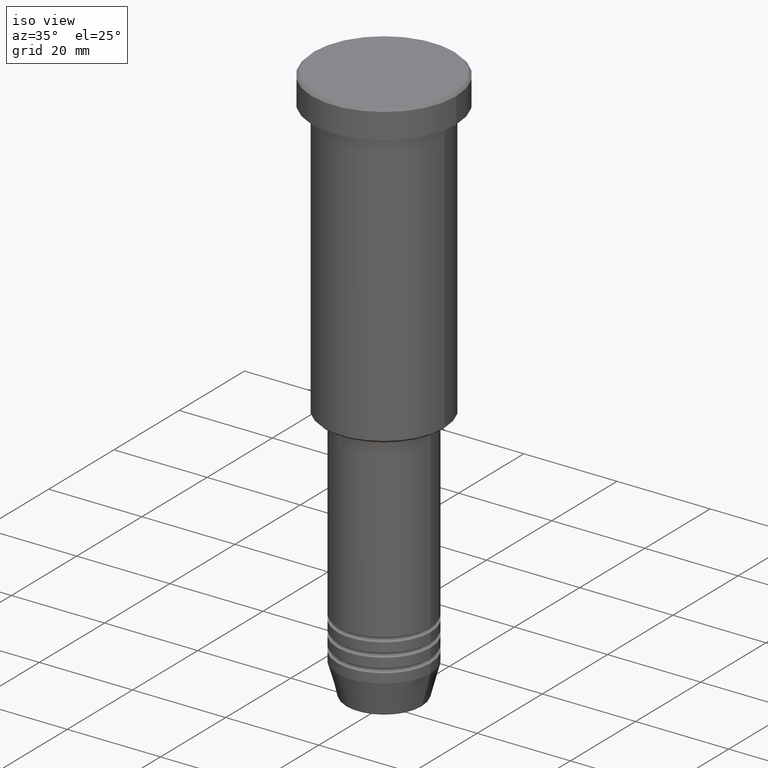
[diagram: clean part render]
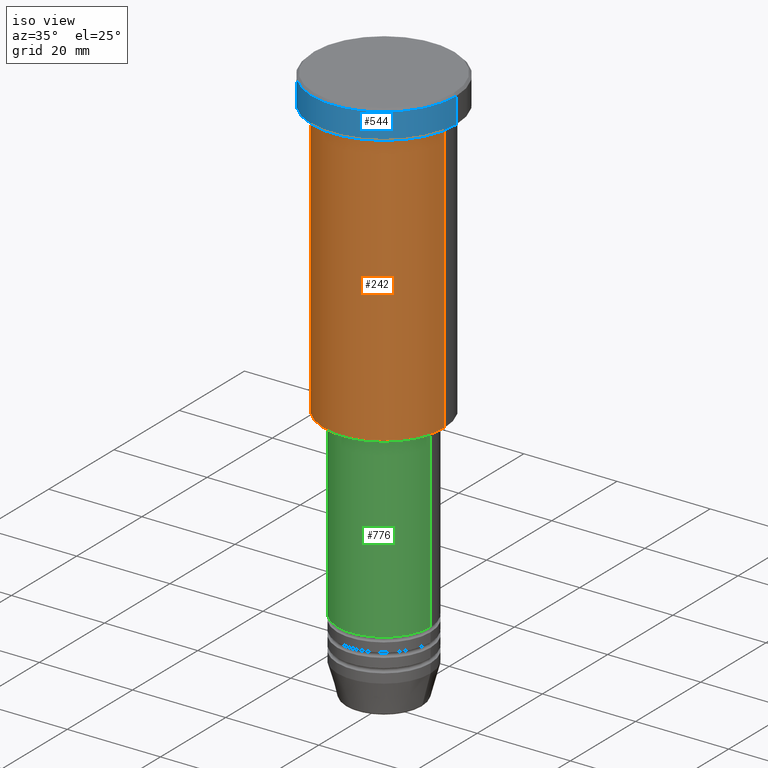
[diagram: same view with three faces highlighted in distinct colors, each labeled with its STEP entity id]
A machine part, iso view with three faces highlighted in distinct colors.
Their STEP definitions:

[orange] entity #242 — the highlighted cylindrical surface (partial cylindrical patch) has radius 13 mm, axis along (-0, -0, 1).
#29 = VECTOR ( 'NONE', #357, 1000.000000000000000 ) ;
#55 = CARTESIAN_POINT ( 'NONE',  ( 0.000000000000000000, 0.000000000000000000, -6.999999999999995559 ) ) ;
#81 = VECTOR ( 'NONE', #976, 1000.000000000000000 ) ;
#99 = FACE_OUTER_BOUND ( 'NONE', #1121, .T. ) ;
#135 = EDGE_CURVE ( 'NONE', #857, #888, #1169, .T. ) ;
#168 = DIRECTION ( 'NONE',  ( -0.000000000000000000, -0.000000000000000000, 1.000000000000000000 ) ) ;
#174 = CARTESIAN_POINT ( 'NONE',  ( 0.000000000000000000, 0.000000000000000000, 0.000000000000000000 ) ) ;
#214 = VERTEX_POINT ( 'NONE', #363 ) ;
#242 = ADVANCED_FACE ( 'NONE', ( #99 ), #1001, .T. ) ;
#253 = VERTEX_POINT ( 'NONE', #1111 ) ;
#281 = DIRECTION ( 'NONE',  ( -1.000000000000000000, 0.000000000000000000, 0.000000000000000000 ) ) ;
#330 = DIRECTION ( 'NONE',  ( -0.000000000000000000, -0.000000000000000000, 1.000000000000000000 ) ) ;
#357 = DIRECTION ( 'NONE',  ( -0.000000000000000000, -0.000000000000000000, 1.000000000000000000 ) ) ;
#363 = CARTESIAN_POINT ( 'NONE',  ( 13.00000000000000000, 0.000000000000000000, -6.999999999999995559 ) ) ;
#435 = CIRCLE ( 'NONE', #1095, 13.00000000000000000 ) ;
#451 = CARTESIAN_POINT ( 'NONE',  ( 13.00000000000000000, 0.000000000000000000, 0.000000000000000000 ) ) ;
#502 = ORIENTED_EDGE ( 'NONE', *, *, #503, .F. ) ;
#503 = EDGE_CURVE ( 'NONE', #888, #214, #1057, .T. ) ;
#521 = DIRECTION ( 'NONE',  ( 1.000000000000000000, 0.000000000000000000, 0.000000000000000000 ) ) ;
#555 = AXIS2_PLACEMENT_3D ( 'NONE', #55, #330, #521 ) ;
#557 = DIRECTION ( 'NONE',  ( -0.000000000000000000, -0.000000000000000000, 1.000000000000000000 ) ) ;
#617 = ORIENTED_EDGE ( 'NONE', *, *, #1144, .T. ) ;
#736 = CARTESIAN_POINT ( 'NONE',  ( -13.00000000000000000, 1.592040838891559095E-15, -6.999999999999995559 ) ) ;
#737 = LINE ( 'NONE', #451, #29 ) ;
#762 = ORIENTED_EDGE ( 'NONE', *, *, #135, .F. ) ;
#857 = VERTEX_POINT ( 'NONE', #1094 ) ;
#859 = EDGE_CURVE ( 'NONE', #857, #253, #435, .T. ) ;
#888 = VERTEX_POINT ( 'NONE', #736 ) ;
#914 = DIRECTION ( 'NONE',  ( 1.000000000000000000, 0.000000000000000000, 0.000000000000000000 ) ) ;
#951 = ORIENTED_EDGE ( 'NONE', *, *, #859, .T. ) ;
#976 = DIRECTION ( 'NONE',  ( -0.000000000000000000, -0.000000000000000000, 1.000000000000000000 ) ) ;
#990 = CARTESIAN_POINT ( 'NONE',  ( -13.00000000000000000, 1.592040838891559095E-15, 0.000000000000000000 ) ) ;
#1001 = CYLINDRICAL_SURFACE ( 'NONE', #1131, 13.00000000000000000 ) ;
#1016 = CARTESIAN_POINT ( 'NONE',  ( 0.000000000000000000, 0.000000000000000000, -65.49999999999998579 ) ) ;
#1057 = CIRCLE ( 'NONE', #555, 13.00000000000000000 ) ;
#1094 = CARTESIAN_POINT ( 'NONE',  ( -13.00000000000000000, 1.592040838891559095E-15, -65.49999999999998579 ) ) ;
#1095 = AXIS2_PLACEMENT_3D ( 'NONE', #1016, #168, #281 ) ;
#1111 = CARTESIAN_POINT ( 'NONE',  ( 13.00000000000000000, 0.000000000000000000, -65.49999999999998579 ) ) ;
#1121 = EDGE_LOOP ( 'NONE', ( #762, #951, #617, #502 ) ) ;
#1131 = AXIS2_PLACEMENT_3D ( 'NONE', #174, #557, #914 ) ;
#1144 = EDGE_CURVE ( 'NONE', #253, #214, #737, .T. ) ;
#1169 = LINE ( 'NONE', #990, #81 ) ;

[blue] entity #544 — the highlighted cylindrical surface (partial cylindrical patch) has radius 15.5 mm, axis along (-0, -0, 1).
#7 = DIRECTION ( 'NONE',  ( -0.000000000000000000, -0.000000000000000000, 1.000000000000000000 ) ) ;
#32 = VERTEX_POINT ( 'NONE', #608 ) ;
#152 = CYLINDRICAL_SURFACE ( 'NONE', #813, 15.50000000000000000 ) ;
#175 = VECTOR ( 'NONE', #621, 1000.000000000000000 ) ;
#238 = CARTESIAN_POINT ( 'NONE',  ( 15.50000000000000000, 0.000000000000000000, 0.000000000000000000 ) ) ;
#250 = CARTESIAN_POINT ( 'NONE',  ( 0.000000000000000000, 0.000000000000000000, 0.000000000000000000 ) ) ;
#276 = CARTESIAN_POINT ( 'NONE',  ( 0.000000000000000000, 0.000000000000000000, -5.999999999999995559 ) ) ;
#299 = ORIENTED_EDGE ( 'NONE', *, *, #359, .T. ) ;
#359 = EDGE_CURVE ( 'NONE', #384, #32, #1003, .T. ) ;
#373 = DIRECTION ( 'NONE',  ( 1.000000000000000000, 0.000000000000000000, 0.000000000000000000 ) ) ;
#384 = VERTEX_POINT ( 'NONE', #778 ) ;
#392 = VECTOR ( 'NONE', #994, 1000.000000000000000 ) ;
#411 = AXIS2_PLACEMENT_3D ( 'NONE', #947, #490, #856 ) ;
#425 = CARTESIAN_POINT ( 'NONE',  ( 15.50000000000000000, 0.000000000000000000, -5.999999999999995559 ) ) ;
#426 = CARTESIAN_POINT ( 'NONE',  ( -15.50000000000000000, 1.898202538678397557E-15, 0.000000000000000000 ) ) ;
#489 = VERTEX_POINT ( 'NONE', #699 ) ;
#490 = DIRECTION ( 'NONE',  ( 0.000000000000000000, 0.000000000000000000, -1.000000000000000000 ) ) ;
#508 = EDGE_CURVE ( 'NONE', #489, #32, #1068, .T. ) ;
#544 = ADVANCED_FACE ( 'NONE', ( #787 ), #152, .T. ) ;
#603 = EDGE_CURVE ( 'NONE', #960, #384, #1164, .T. ) ;
#608 = CARTESIAN_POINT ( 'NONE',  ( -15.50000000000000000, 1.898202538678397557E-15, -0.4999999999999848455 ) ) ;
#621 = DIRECTION ( 'NONE',  ( -0.000000000000000000, -0.000000000000000000, 1.000000000000000000 ) ) ;
#638 = ORIENTED_EDGE ( 'NONE', *, *, #508, .F. ) ;
#688 = ORIENTED_EDGE ( 'NONE', *, *, #849, .T. ) ;
#699 = CARTESIAN_POINT ( 'NONE',  ( -15.50000000000000000, 1.898202538678397557E-15, -5.999999999999995559 ) ) ;
#778 = CARTESIAN_POINT ( 'NONE',  ( 15.50000000000000000, 0.000000000000000000, -0.4999999999999848455 ) ) ;
#787 = FACE_OUTER_BOUND ( 'NONE', #883, .T. ) ;
#813 = AXIS2_PLACEMENT_3D ( 'NONE', #250, #1055, #885 ) ;
#847 = ORIENTED_EDGE ( 'NONE', *, *, #603, .T. ) ;
#849 = EDGE_CURVE ( 'NONE', #489, #960, #948, .T. ) ;
#856 = DIRECTION ( 'NONE',  ( 1.000000000000000000, 0.000000000000000000, 0.000000000000000000 ) ) ;
#883 = EDGE_LOOP ( 'NONE', ( #638, #688, #847, #299 ) ) ;
#885 = DIRECTION ( 'NONE',  ( 1.000000000000000000, 0.000000000000000000, 0.000000000000000000 ) ) ;
#947 = CARTESIAN_POINT ( 'NONE',  ( 0.000000000000000000, 0.000000000000000000, -0.4999999999999848455 ) ) ;
#948 = CIRCLE ( 'NONE', #1116, 15.50000000000000000 ) ;
#960 = VERTEX_POINT ( 'NONE', #425 ) ;
#994 = DIRECTION ( 'NONE',  ( -0.000000000000000000, -0.000000000000000000, 1.000000000000000000 ) ) ;
#1003 = CIRCLE ( 'NONE', #411, 15.50000000000000000 ) ;
#1055 = DIRECTION ( 'NONE',  ( -0.000000000000000000, -0.000000000000000000, 1.000000000000000000 ) ) ;
#1068 = LINE ( 'NONE', #426, #175 ) ;
#1116 = AXIS2_PLACEMENT_3D ( 'NONE', #276, #7, #373 ) ;
#1164 = LINE ( 'NONE', #238, #392 ) ;

[green] entity #776 — the highlighted cylindrical surface (partial cylindrical patch) has radius 10 mm, axis along (-0, -0, 1).
#12 = LINE ( 'NONE', #573, #910 ) ;
#16 = CARTESIAN_POINT ( 'NONE',  ( 10.00000000000000000, 0.000000000000000000, -104.9999999999999858 ) ) ;
#19 = CARTESIAN_POINT ( 'NONE',  ( 0.000000000000000000, 0.000000000000000000, 0.000000000000000000 ) ) ;
#62 = EDGE_CURVE ( 'NONE', #891, #204, #646, .T. ) ;
#70 = DIRECTION ( 'NONE',  ( -0.000000000000000000, -0.000000000000000000, 1.000000000000000000 ) ) ;
#106 = DIRECTION ( 'NONE',  ( -0.000000000000000000, -0.000000000000000000, 1.000000000000000000 ) ) ;
#112 = EDGE_LOOP ( 'NONE', ( #160, #492, #497, #210 ) ) ;
#160 = ORIENTED_EDGE ( 'NONE', *, *, #297, .F. ) ;
#204 = VERTEX_POINT ( 'NONE', #1027 ) ;
#210 = ORIENTED_EDGE ( 'NONE', *, *, #62, .F. ) ;
#224 = VERTEX_POINT ( 'NONE', #747 ) ;
#226 = EDGE_CURVE ( 'NONE', #224, #228, #756, .T. ) ;
#228 = VERTEX_POINT ( 'NONE', #16 ) ;
#245 = CARTESIAN_POINT ( 'NONE',  ( 0.000000000000000000, 0.000000000000000000, -67.00000000000000000 ) ) ;
#284 = DIRECTION ( 'NONE',  ( -0.000000000000000000, -0.000000000000000000, 1.000000000000000000 ) ) ;
#297 = EDGE_CURVE ( 'NONE', #224, #891, #12, .T. ) ;
#386 = DIRECTION ( 'NONE',  ( -0.000000000000000000, -0.000000000000000000, 1.000000000000000000 ) ) ;
#413 = VECTOR ( 'NONE', #468, 1000.000000000000000 ) ;
#468 = DIRECTION ( 'NONE',  ( -0.000000000000000000, -0.000000000000000000, 1.000000000000000000 ) ) ;
#492 = ORIENTED_EDGE ( 'NONE', *, *, #226, .T. ) ;
#497 = ORIENTED_EDGE ( 'NONE', *, *, #838, .T. ) ;
#551 = LINE ( 'NONE', #806, #413 ) ;
#573 = CARTESIAN_POINT ( 'NONE',  ( -10.00000000000000000, 1.224646799147353256E-15, 0.000000000000000000 ) ) ;
#626 = DIRECTION ( 'NONE',  ( 1.000000000000000000, 0.000000000000000000, 0.000000000000000000 ) ) ;
#646 = CIRCLE ( 'NONE', #1037, 10.00000000000000000 ) ;
#660 = DIRECTION ( 'NONE',  ( 1.000000000000000000, 0.000000000000000000, 0.000000000000000000 ) ) ;
#747 = CARTESIAN_POINT ( 'NONE',  ( -10.00000000000000000, 1.224646799147353256E-15, -104.9999999999999858 ) ) ;
#753 = FACE_OUTER_BOUND ( 'NONE', #112, .T. ) ;
#756 = CIRCLE ( 'NONE', #1023, 10.00000000000000000 ) ;
#776 = ADVANCED_FACE ( 'NONE', ( #753 ), #1113, .T. ) ;
#806 = CARTESIAN_POINT ( 'NONE',  ( 10.00000000000000000, 0.000000000000000000, 0.000000000000000000 ) ) ;
#822 = CARTESIAN_POINT ( 'NONE',  ( 0.000000000000000000, 0.000000000000000000, -104.9999999999999858 ) ) ;
#838 = EDGE_CURVE ( 'NONE', #228, #204, #551, .T. ) ;
#844 = DIRECTION ( 'NONE',  ( 1.000000000000000000, 0.000000000000000000, 0.000000000000000000 ) ) ;
#891 = VERTEX_POINT ( 'NONE', #992 ) ;
#910 = VECTOR ( 'NONE', #106, 1000.000000000000000 ) ;
#966 = AXIS2_PLACEMENT_3D ( 'NONE', #19, #386, #844 ) ;
#992 = CARTESIAN_POINT ( 'NONE',  ( -10.00000000000000000, 1.224646799147353256E-15, -67.00000000000000000 ) ) ;
#1023 = AXIS2_PLACEMENT_3D ( 'NONE', #822, #284, #660 ) ;
#1027 = CARTESIAN_POINT ( 'NONE',  ( 10.00000000000000000, 0.000000000000000000, -67.00000000000000000 ) ) ;
#1037 = AXIS2_PLACEMENT_3D ( 'NONE', #245, #70, #626 ) ;
#1113 = CYLINDRICAL_SURFACE ( 'NONE', #966, 10.00000000000000000 ) ;